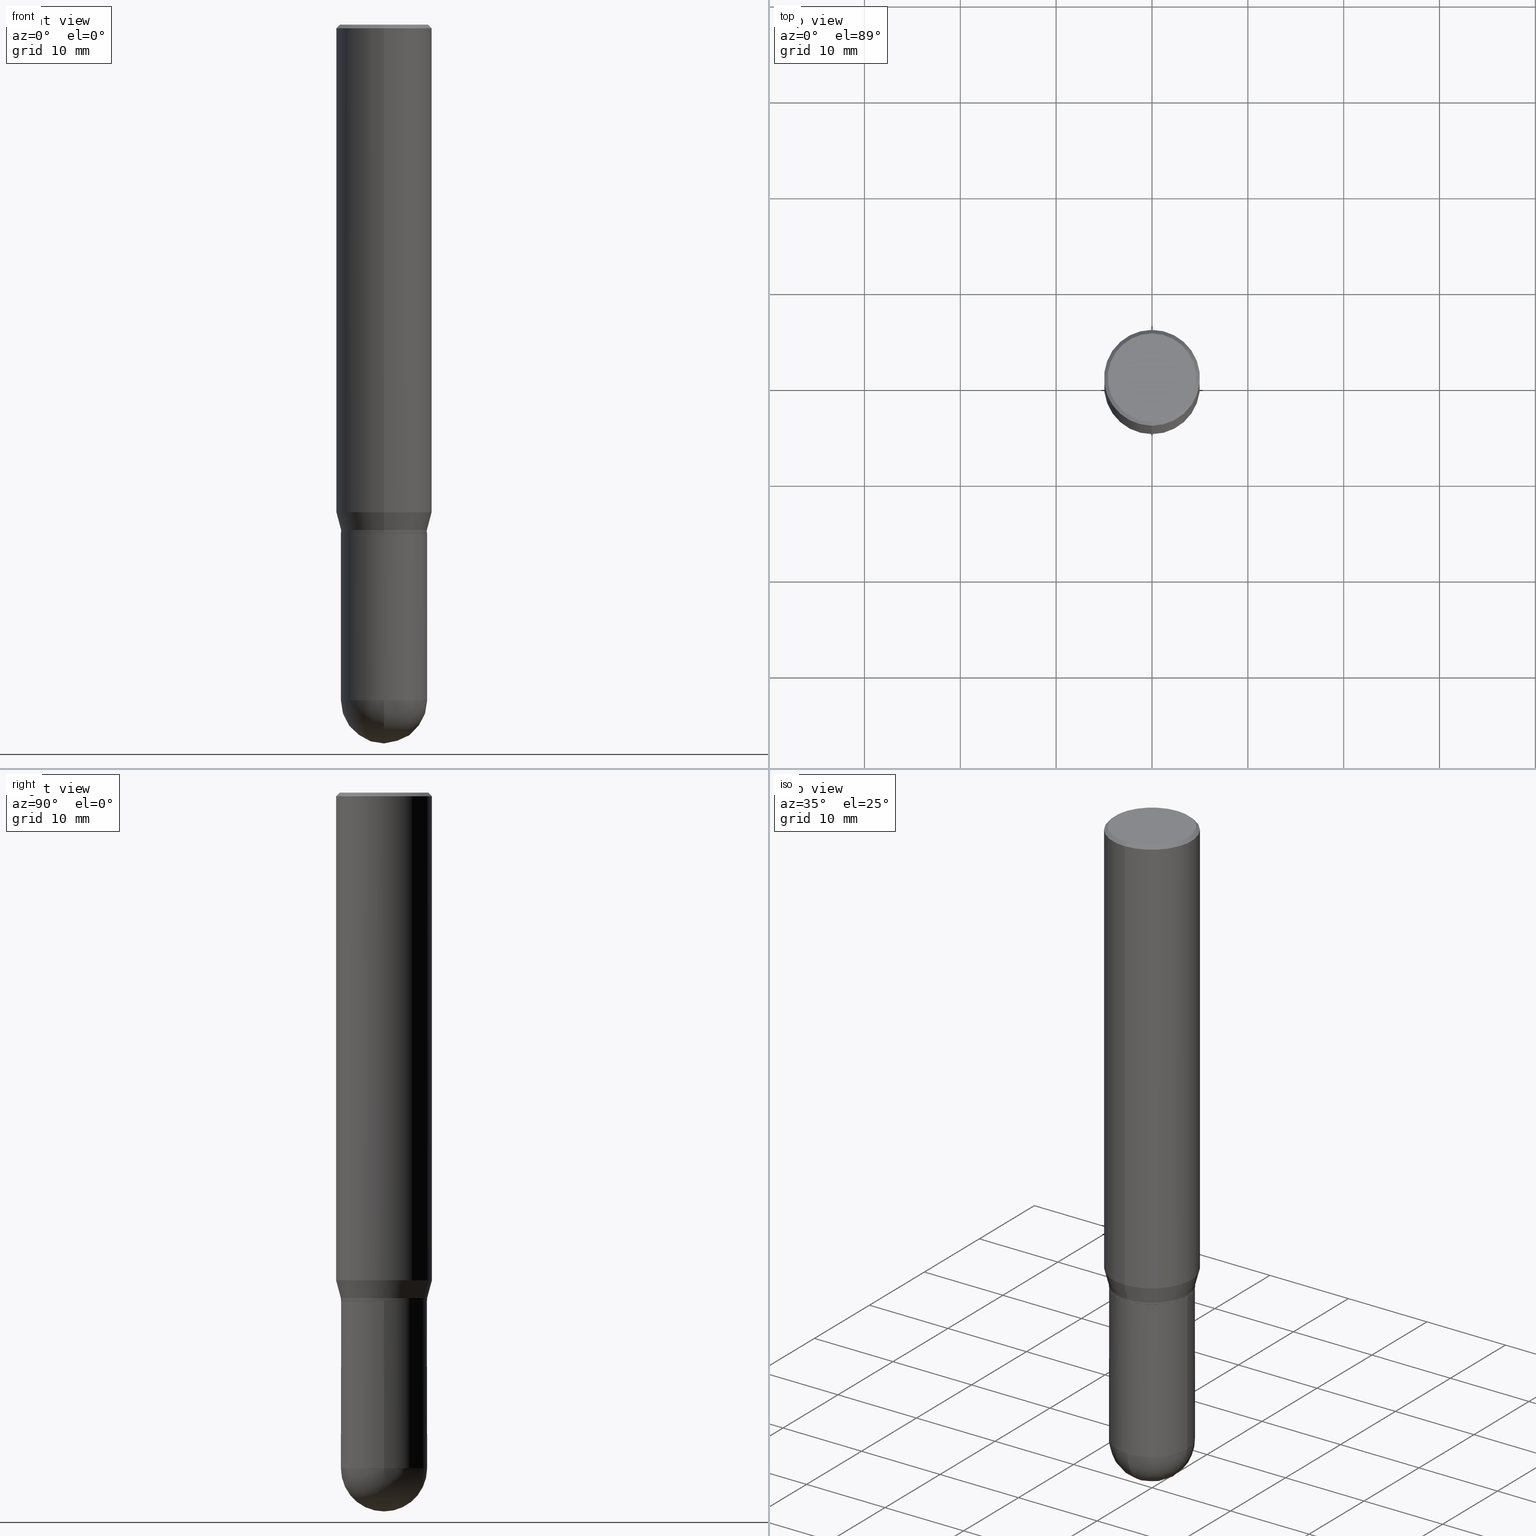
[diagram: canonical four-view strip — front | top / right | iso, engineering-drawing reading convention]
A machine part, canonical four-view strip (front | top / right | iso — engineering-drawing reading convention). The complete STEP part file that produces these views, byte-faithful:
ISO-10303-21;
HEADER;
FILE_DESCRIPTION (( 'STEP AP203' ),
    '1' );
FILE_NAME ('48726.STEP',
    '2024-03-08T13:18:42',
    ( '' ),
    ( '' ),
    'SwSTEP 2.0',
    'SolidWorks 2023',
    '' );
FILE_SCHEMA (( 'CONFIG_CONTROL_DESIGN' ));
ENDSEC;

DATA;
#1 = CARTESIAN_POINT ( 'NONE',  ( 1.255173742720268265E-15, 0.1766499999999928128, -2.086700000000000443 ) ) ;
#2 = CARTESIAN_POINT ( 'NONE',  ( -1.233540357013228308E-15, -0.1766500000000073567, -2.086699999999999555 ) ) ;
#3 = EDGE_CURVE ( 'NONE', #12, #211, #135, .T. ) ;
#4 = LINE ( 'NONE', #173, #301 ) ;
#5 = VECTOR ( 'NONE', #430, 39.37007874015748143 ) ;
#6 = APPROVAL_PERSON_ORGANIZATION ( #435, #405, #112 ) ;
#7 = DIRECTION ( 'NONE',  ( 6.982962677686265922E-15, 1.000000000000000000, -3.490923322346021182E-15 ) ) ;
#8 = EDGE_CURVE ( 'NONE', #156, #413, #419, .T. ) ;
#9 = ORIENTED_EDGE ( 'NONE', *, *, #61, .T. ) ;
#10 = CC_DESIGN_DATE_AND_TIME_ASSIGNMENT ( #73, #364, ( #482 ) ) ;
#11 = CARTESIAN_POINT ( 'NONE',  ( 1.328714915871437240E-15, 0.1771499999999927855, -2.076700000000000657 ) ) ;
#12 = VERTEX_POINT ( 'NONE', #312 ) ;
#13 = DIRECTION ( 'NONE',  ( -2.445468806185136597E-29, 3.491481338843145583E-15, 1.000000000000000000 ) ) ;
#14 = VECTOR ( 'NONE', #498, 39.37007874015748143 ) ;
#15 = CONICAL_SURFACE ( 'NONE', #512, 0.1766500000000000847, 0.7853981633974824739 ) ;
#16 = ORIENTED_EDGE ( 'NONE', *, *, #459, .F. ) ;
#17 = AXIS2_PLACEMENT_3D ( 'NONE', #103, #155, #465 ) ;
#18 = CARTESIAN_POINT ( 'NONE',  ( 6.813022828238686978E-29, -9.654960234947156736E-15, -2.775649999999999729 ) ) ;
#19 = DIMENSIONAL_EXPONENTS ( 1.000000000000000000, 0.000000000000000000, 0.000000000000000000, 0.000000000000000000, 0.000000000000000000, 0.000000000000000000, 0.000000000000000000 ) ;
#20 = FACE_OUTER_BOUND ( 'NONE', #143, .T. ) ;
#21 = EDGE_CURVE ( 'NONE', #219, #297, #119, .T. ) ;
#22 = EDGE_LOOP ( 'NONE', ( #265, #29, #256, #314 ) ) ;
#23 = CARTESIAN_POINT ( 'NONE',  ( -1.237031838352071512E-15, -0.1771500000000073571, -2.086199999999999388 ) ) ;
#24 = DIRECTION ( 'NONE',  ( 1.000000000000000000, -6.982962677686270655E-15, 0.000000000000000000 ) ) ;
#25 = CC_DESIGN_PERSON_AND_ORGANIZATION_ASSIGNMENT ( #77, #479, ( #346 ) ) ;
#26 = EDGE_LOOP ( 'NONE', ( #310, #59, #309, #295 ) ) ;
#27 = VERTEX_POINT ( 'NONE', #207 ) ;
#28 = CARTESIAN_POINT ( 'NONE',  ( 5.079314278465484950E-29, -7.249600463515981474E-15, -2.076700000000000212 ) ) ;
#29 = ORIENTED_EDGE ( 'NONE', *, *, #8, .T. ) ;
#30 = PERSON_AND_ORGANIZATION_ROLE ( 'design_supplier' ) ;
#31 = APPLICATION_CONTEXT ( 'configuration controlled 3d designs of mechanical parts and assemblies' ) ;
#32 = PERSON_AND_ORGANIZATION_ROLE ( 'creator' ) ;
#33 = ORIENTED_EDGE ( 'NONE', *, *, #154, .T. ) ;
#34 = CARTESIAN_POINT ( 'NONE',  ( 5.079314278465484950E-29, -7.249600463515981474E-15, -2.076700000000000212 ) ) ;
#35 = CARTESIAN_POINT ( 'NONE',  ( 0.000000000000000000, 0.000000000000000000, 0.000000000000000000 ) ) ;
#36 = DIRECTION ( 'NONE',  ( -2.445858467022432184E-29, 3.490923322346020788E-15, 1.000000000000000000 ) ) ;
#37 = SECURITY_CLASSIFICATION_LEVEL ( 'unclassified' ) ;
#38 = DIRECTION ( 'NONE',  ( -6.982962677686265922E-15, -1.000000000000000000, 4.163344669033675634E-15 ) ) ;
#39 = DATE_TIME_ROLE ( 'creation_date' ) ;
#40 = CIRCLE ( 'NONE', #283, 0.1968500000000000250 ) ;
#41 = FACE_OUTER_BOUND ( 'NONE', #97, .T. ) ;
#42 = ORGANIZATION ( 'UNSPECIFIED', 'UNSPECIFIED', '' ) ;
#43 = CYLINDRICAL_SURFACE ( 'NONE', #193, 0.1968499999999999694 ) ;
#44 = ADVANCED_FACE ( 'NONE', ( #436 ), #478, .F. ) ;
#45 = FACE_OUTER_BOUND ( 'NONE', #104, .T. ) ;
#46 = FACE_OUTER_BOUND ( 'NONE', #113, .T. ) ;
#47 = AXIS2_PLACEMENT_3D ( 'NONE', #508, #397, #82 ) ;
#48 = APPROVAL_PERSON_ORGANIZATION ( #471, #352, #510 ) ;
#49 = CYLINDRICAL_SURFACE ( 'NONE', #187, 0.1771500000000000019 ) ;
#50 = EDGE_CURVE ( 'NONE', #211, #219, #505, .T. ) ;
#51 = EDGE_LOOP ( 'NONE', ( #144, #271, #483, #99 ) ) ;
#52 = LINE ( 'NONE', #171, #431 ) ;
#53 = ORIENTED_EDGE ( 'NONE', *, *, #331, .T. ) ;
#54 = CARTESIAN_POINT ( 'NONE',  ( 5.102959757866523939E-29, -7.285674109763990928E-15, -2.086699999999999999 ) ) ;
#55 = AXIS2_PLACEMENT_3D ( 'NONE', #252, #136, #333 ) ;
#56 = ORIENTED_EDGE ( 'NONE', *, *, #124, .T. ) ;
#57 = DIRECTION ( 'NONE',  ( -6.982962677686265922E-15, -1.000000000000000000, 3.084220145260246224E-15 ) ) ;
#58 = CARTESIAN_POINT ( 'NONE',  ( 5.103772863135708834E-29, -7.284509696739441224E-15, -2.086699999999999999 ) ) ;
#59 = ORIENTED_EDGE ( 'NONE', *, *, #21, .T. ) ;
#60 = DIRECTION ( 'NONE',  ( 1.000000000000000000, -6.982962677686269077E-15, 0.000000000000000000 ) ) ;
#61 = EDGE_CURVE ( 'NONE', #150, #139, #203, .T. ) ;
#62 = FACE_OUTER_BOUND ( 'NONE', #270, .T. ) ;
#63 = EDGE_LOOP ( 'NONE', ( #191, #458 ) ) ;
#64 = PERSON ( 'UNSPECIFIED', 'UNSPECIFIED', 'UNSPECIFIED', ('UNSPECIFIED'), ('UNSPECIFIED'), ('UNSPECIFIED') ) ;
#65 = AXIS2_PLACEMENT_3D ( 'NONE', #145, #500, #182 ) ;
#66 = LOCAL_TIME ( 8, 18, 42.00000000000000000, #321 ) ;
#67 = ORIENTED_EDGE ( 'NONE', *, *, #258, .T. ) ;
#68 = ORIENTED_EDGE ( 'NONE', *, *, #382, .F. ) ;
#69 = PRODUCT_DEFINITION_SHAPE ( 'NONE', 'NONE',  #189 ) ;
#70 = APPROVAL_STATUS ( 'not_yet_approved' ) ;
#71 = EDGE_LOOP ( 'NONE', ( #68, #157, #420, #231 ) ) ;
#72 = EDGE_CURVE ( 'NONE', #297, #156, #390, .T. ) ;
#73 = DATE_AND_TIME ( #81, #118 ) ;
#74 = DIRECTION ( 'NONE',  ( -2.445858467022432184E-29, 3.490923322346020788E-15, 1.000000000000000000 ) ) ;
#75 = EDGE_CURVE ( 'NONE', #275, #156, #327, .T. ) ;
#76 = VECTOR ( 'NONE', #448, 39.37007874015748143 ) ;
#77 = PERSON_AND_ORGANIZATION ( #64, #42 ) ;
#78 = CARTESIAN_POINT ( 'NONE',  ( 3.668787700533860766E-31, -5.236384983519334795E-17, -0.01500000000000086854 ) ) ;
#79 = APPLICATION_PROTOCOL_DEFINITION ( 'international standard', 'config_control_design', 1994, #196 ) ;
#80 = DIRECTION ( 'NONE',  ( 1.839019923739597554E-15, 0.2588190451025245697, 0.9659258262890670910 ) ) ;
#81 = CALENDAR_DATE ( 2024, 8, 3 ) ;
#82 = DIRECTION ( 'NONE',  ( 1.000000000000000000, -6.982962677686270655E-15, 0.000000000000000000 ) ) ;
#83 = VECTOR ( 'NONE', #85, 39.37007874015748143 ) ;
#84 = CONICAL_SURFACE ( 'NONE', #158, 0.1771500000000000019, 0.2617993877991499074 ) ;
#85 = DIRECTION ( 'NONE',  ( -2.445858467022432184E-29, 3.490923322346021182E-15, 1.000000000000000000 ) ) ;
#86 = CIRCLE ( 'NONE', #490, 0.1766500000000000847 ) ;
#87 = CARTESIAN_POINT ( 'NONE',  ( 0.1771500000000000574, -1.237031838352122591E-15, 8.638147158322501361E-30 ) ) ;
#88 = VERTEX_POINT ( 'NONE', #202 ) ;
#89 = CARTESIAN_POINT ( 'NONE',  ( -0.1771500000000000574, -7.229675687562965256E-15, -2.775649999999999729 ) ) ;
#90 = PLANE ( 'NONE',  #147 ) ;
#91 = CIRCLE ( 'NONE', #254, 0.1818500000000000116 ) ;
#92 = AXIS2_PLACEMENT_3D ( 'NONE', #263, #276, #358 ) ;
#93 = CARTESIAN_POINT ( 'NONE',  ( 0.000000000000000000, 0.000000000000000000, 0.000000000000000000 ) ) ;
#94 = ORIENTED_EDGE ( 'NONE', *, *, #72, .F. ) ;
#95 = FACE_OUTER_BOUND ( 'NONE', #277, .T. ) ;
#96 = ADVANCED_FACE ( 'NONE', ( #242 ), #160, .T. ) ;
#97 = EDGE_LOOP ( 'NONE', ( #133, #438, #259, #176 ) ) ;
#98 = FACE_OUTER_BOUND ( 'NONE', #445, .T. ) ;
#99 = ORIENTED_EDGE ( 'NONE', *, *, #241, .F. ) ;
#100 = CONICAL_SURFACE ( 'NONE', #174, 0.1771500000000000019, 0.2617993877991499074 ) ;
#101 = DIRECTION ( 'NONE',  ( -2.445858467022432184E-29, 3.490923322346020788E-15, 1.000000000000000000 ) ) ;
#102 = ORIENTED_EDGE ( 'NONE', *, *, #217, .T. ) ;
#103 = CARTESIAN_POINT ( 'NONE',  ( 6.813022828238686978E-29, -9.654960234947156736E-15, -2.775649999999999729 ) ) ;
#104 = EDGE_LOOP ( 'NONE', ( #186, #16 ) ) ;
#105 = CC_DESIGN_PERSON_AND_ORGANIZATION_ASSIGNMENT ( #329, #121, ( #482 ) ) ;
#106 = LINE ( 'NONE', #225, #406 ) ;
#107 = CIRCLE ( 'NONE', #368, 0.1771500000000000852 ) ;
#108 = PRODUCT_DEFINITION_FORMATION_WITH_SPECIFIED_SOURCE ( 'ANY', '', #346, .NOT_KNOWN. ) ;
#109 = DIRECTION ( 'NONE',  ( 1.000000000000000000, -6.982962677686266711E-15, 4.876176775795934672E-29 ) ) ;
#110 = ADVANCED_FACE ( 'NONE', ( #480 ), #84, .T. ) ;
#111 = EDGE_LOOP ( 'NONE', ( #129, #402, #33, #411 ) ) ;
#112 = APPROVAL_ROLE ( '' ) ;
#113 = EDGE_LOOP ( 'NONE', ( #425, #226, #495, #181 ) ) ;
#114 = CARTESIAN_POINT ( 'NONE',  ( 0.000000000000000000, 0.000000000000000000, 0.000000000000000000 ) ) ;
#115 = PERSON_AND_ORGANIZATION ( #64, #42 ) ;
#116 = DIRECTION ( 'NONE',  ( -2.445858467022432184E-29, 3.490923322346020788E-15, 1.000000000000000000 ) ) ;
#117 = CIRCLE ( 'NONE', #247, 0.1771500000000000574 ) ;
#118 = LOCAL_TIME ( 8, 18, 42.00000000000000000, #164 ) ;
#119 = LINE ( 'NONE', #395, #83 ) ;
#120 = EDGE_CURVE ( 'NONE', #262, #453, #366, .T. ) ;
#121 = PERSON_AND_ORGANIZATION_ROLE ( 'classification_officer' ) ;
#122 = DIRECTION ( 'NONE',  ( -6.982962677686265922E-15, -1.000000000000000000, 3.490923322346020394E-15 ) ) ;
#123 = PERSON_AND_ORGANIZATION ( #64, #42 ) ;
#124 = EDGE_CURVE ( 'NONE', #262, #409, #91, .T. ) ;
#125 = CARTESIAN_POINT ( 'NONE',  ( 2.126280627194587718E-44, -3.034796465701640769E-30, -8.693391935237790375E-16 ) ) ;
#126 = AXIS2_PLACEMENT_3D ( 'NONE', #332, #511, #365 ) ;
#127 = DIRECTION ( 'NONE',  ( -4.937700262164715281E-15, -0.7071067811865691111, 0.7071067811865257013 ) ) ;
#128 = EDGE_CURVE ( 'NONE', #221, #27, #212, .T. ) ;
#129 = ORIENTED_EDGE ( 'NONE', *, *, #8, .F. ) ;
#130 = CARTESIAN_POINT ( 'NONE',  ( -1.237031838352071315E-15, -0.1771500000000072461, -2.076699999999999768 ) ) ;
#131 = EDGE_LOOP ( 'NONE', ( #229, #56 ) ) ;
#132 = CARTESIAN_POINT ( 'NONE',  ( -0.1771500000000000574, 1.258726456399017887E-15, -8.713893512386568128E-30 ) ) ;
#133 = ORIENTED_EDGE ( 'NONE', *, *, #120, .F. ) ;
#134 = ADVANCED_FACE ( 'NONE', ( #41 ), #264, .T. ) ;
#135 = CIRCLE ( 'NONE', #468, 0.1766500000000000847 ) ;
#136 = DIRECTION ( 'NONE',  ( -2.445858467022432184E-29, 3.490923322346020788E-15, 1.000000000000000000 ) ) ;
#137 = VECTOR ( 'NONE', #403, 39.37007874015748143 ) ;
#138 = EDGE_CURVE ( 'NONE', #409, #262, #230, .T. ) ;
#139 = VERTEX_POINT ( 'NONE', #206 ) ;
#140 = CARTESIAN_POINT ( 'NONE',  ( 0.000000000000000000, 0.000000000000000000, 0.000000000000000000 ) ) ;
#141 = ORIENTED_EDGE ( 'NONE', *, *, #492, .T. ) ;
#142 = CARTESIAN_POINT ( 'NONE',  ( 1.398703375343806303E-15, 0.1968499999999999139, -0.01500000000000155549 ) ) ;
#143 = EDGE_LOOP ( 'NONE', ( #94, #141, #306, #456 ) ) ;
#144 = ORIENTED_EDGE ( 'NONE', *, *, #455, .F. ) ;
#145 = CARTESIAN_POINT ( 'NONE',  ( 6.813022828238686978E-29, -9.654960234947156736E-15, -2.775649999999999729 ) ) ;
#146 = EDGE_CURVE ( 'NONE', #453, #413, #223, .T. ) ;
#147 = AXIS2_PLACEMENT_3D ( 'NONE', #491, #213, #7 ) ;
#148 = CC_DESIGN_APPROVAL ( #405, ( #482 ) ) ;
#149 = DIRECTION ( 'NONE',  ( -2.445468806185136597E-29, 3.491481338843145583E-15, 1.000000000000000000 ) ) ;
#150 = VERTEX_POINT ( 'NONE', #290 ) ;
#151 = ORIENTED_EDGE ( 'NONE', *, *, #75, .F. ) ;
#152 = ADVANCED_FACE ( 'NONE', ( #282 ), #43, .T. ) ;
#153 = DIRECTION ( 'NONE',  ( -1.000000000000000000, 6.982962677686265133E-15, -4.883557194083112340E-29 ) ) ;
#154 = EDGE_CURVE ( 'NONE', #275, #453, #363, .T. ) ;
#155 = DIRECTION ( 'NONE',  ( -1.000000000000000000, 6.982962677686265133E-15, -4.883557194083112340E-29 ) ) ;
#156 = VERTEX_POINT ( 'NONE', #324 ) ;
#157 = ORIENTED_EDGE ( 'NONE', *, *, #455, .T. ) ;
#158 = AXIS2_PLACEMENT_3D ( 'NONE', #34, #509, #243 ) ;
#159 = DATE_AND_TIME ( #205, #66 ) ;
#160 = CYLINDRICAL_SURFACE ( 'NONE', #442, 0.1968499999999999694 ) ;
#161 = ADVANCED_BREP_SHAPE_REPRESENTATION ( '48726', ( #233, #227, #335 ), #266 ) ;
#162 = DIRECTION ( 'NONE',  ( 0.000000000000000000, 0.000000000000000000, 1.000000000000000000 ) ) ;
#163 = CARTESIAN_POINT ( 'NONE',  ( -1.374596203102541214E-15, -0.1968499999999999694, 6.871882560038140128E-16 ) ) ;
#164 = COORDINATED_UNIVERSAL_TIME_OFFSET ( 5, 0, .BEHIND. ) ;
#165 = DIRECTION ( 'NONE',  ( -2.445858467022432184E-29, 3.490923322346020788E-15, 1.000000000000000000 ) ) ;
#166 = EDGE_CURVE ( 'NONE', #413, #453, #40, .T. ) ;
#167 = DATE_AND_TIME ( #503, #274 ) ;
#168 = DIRECTION ( 'NONE',  ( -2.445858467022432184E-29, 3.490923322346020788E-15, 1.000000000000000000 ) ) ;
#169 = APPROVAL_STATUS ( 'not_yet_approved' ) ;
#170 = CARTESIAN_POINT ( 'NONE',  ( 1.237031838352173473E-15, 0.1771499999999928132, -2.086700000000000443 ) ) ;
#171 = CARTESIAN_POINT ( 'NONE',  ( -1.237031838352121999E-15, -0.1771500000000000019, 6.184170665535975907E-16 ) ) ;
#172 = AXIS2_PLACEMENT_3D ( 'NONE', #285, #36, #38 ) ;
#173 = CARTESIAN_POINT ( 'NONE',  ( -1.237031838352071315E-15, -0.1771500000000072461, -2.076699999999999768 ) ) ;
#174 = AXIS2_PLACEMENT_3D ( 'NONE', #28, #101, #183 ) ;
#175 = CARTESIAN_POINT ( 'NONE',  ( 0.000000000000000000, 0.000000000000000000, 0.000000000000000000 ) ) ;
#176 = ORIENTED_EDGE ( 'NONE', *, *, #166, .T. ) ;
#177 = CARTESIAN_POINT ( 'NONE',  ( 5.103772863135708834E-29, -7.284509696739441224E-15, -2.086699999999999999 ) ) ;
#178 = CARTESIAN_POINT ( 'NONE',  ( -1.299035295878039226E-15, -0.1818500000000000116, -2.345147873551550940E-16 ) ) ;
#179 = AXIS2_PLACEMENT_3D ( 'NONE', #440, #439, #238 ) ;
#180 = AXIS2_PLACEMENT_3D ( 'NONE', #317, #493, #24 ) ;
#181 = ORIENTED_EDGE ( 'NONE', *, *, #349, .F. ) ;
#182 = DIRECTION ( 'NONE',  ( -7.105427357600999492E-15, -1.000000000000000000, 0.000000000000000000 ) ) ;
#183 = DIRECTION ( 'NONE',  ( -6.982962677686265922E-15, -1.000000000000000000, 3.084220145260246224E-15 ) ) ;
#184 = VERTEX_POINT ( 'NONE', #302 ) ;
#185 = CARTESIAN_POINT ( 'NONE',  ( 0.1771500000000000852, -8.522705948116114900E-15, -2.086699999999999999 ) ) ;
#186 = ORIENTED_EDGE ( 'NONE', *, *, #3, .F. ) ;
#187 = AXIS2_PLACEMENT_3D ( 'NONE', #93, #481, #303 ) ;
#188 = FACE_OUTER_BOUND ( 'NONE', #71, .T. ) ;
#189 = PRODUCT_DEFINITION ( 'UNKNOWN', '', #108, #446 ) ;
#190 = FACE_OUTER_BOUND ( 'NONE', #51, .T. ) ;
#191 = ORIENTED_EDGE ( 'NONE', *, *, #396, .T. ) ;
#192 =( NAMED_UNIT ( * ) PLANE_ANGLE_UNIT ( ) SI_UNIT ( $, .RADIAN. ) );
#193 = AXIS2_PLACEMENT_3D ( 'NONE', #322, #280, #197 ) ;
#194 = CIRCLE ( 'NONE', #432, 0.1771500000000000574 ) ;
#195 = DATE_AND_TIME ( #428, #443 ) ;
#196 = APPLICATION_CONTEXT ( 'configuration controlled 3d designs of mechanical parts and assemblies' ) ;
#197 = DIRECTION ( 'NONE',  ( -6.982962677686265922E-15, -1.000000000000000000, 3.490923322346020394E-15 ) ) ;
#198 = ADVANCED_FACE ( 'NONE', ( #444 ), #257, .T. ) ;
#199 = DIRECTION ( 'NONE',  ( -2.445858467022432184E-29, 3.490923322346020788E-15, 1.000000000000000000 ) ) ;
#200 = ADVANCED_FACE ( 'NONE', ( #95 ), #308, .T. ) ;
#201 = APPROVAL_DATE_TIME ( #159, #352 ) ;
#202 = CARTESIAN_POINT ( 'NONE',  ( -0.1771500000000000852, -7.229675687562965256E-15, -2.086699999999999999 ) ) ;
#203 = CIRCLE ( 'NONE', #179, 0.1771500000000000574 ) ;
#204 = CONICAL_SURFACE ( 'NONE', #224, 0.1968500000000000250, 0.7853981633974485010 ) ;
#205 = CALENDAR_DATE ( 2024, 8, 3 ) ;
#206 = CARTESIAN_POINT ( 'NONE',  ( 1.237031838352190236E-15, 0.1771499999999903430, -2.775650000000000173 ) ) ;
#207 = CARTESIAN_POINT ( 'NONE',  ( -1.258726456398949454E-15, -0.1771500000000097441, -2.775649999999999284 ) ) ;
#208 = DIRECTION ( 'NONE',  ( -2.445858467022431624E-29, 3.490923322346021182E-15, 1.000000000000000000 ) ) ;
#209 = VERTEX_POINT ( 'NONE', #130 ) ;
#210 = CC_DESIGN_PERSON_AND_ORGANIZATION_ASSIGNMENT ( #369, #30, ( #108 ) ) ;
#211 = VERTEX_POINT ( 'NONE', #378 ) ;
#212 = CIRCLE ( 'NONE', #47, 0.1771500000000000574 ) ;
#213 = DIRECTION ( 'NONE',  ( 2.445858467022431624E-29, -3.490923322346021182E-15, -1.000000000000000000 ) ) ;
#214 = CIRCLE ( 'NONE', #92, 0.1771500000000000019 ) ;
#215 = ORIENTED_EDGE ( 'NONE', *, *, #258, .F. ) ;
#216 = ADVANCED_FACE ( 'NONE', ( #46 ), #15, .T. ) ;
#217 = EDGE_CURVE ( 'NONE', #150, #388, #296, .T. ) ;
#218 = FACE_OUTER_BOUND ( 'NONE', #389, .T. ) ;
#219 = VERTEX_POINT ( 'NONE', #410 ) ;
#220 = DIRECTION ( 'NONE',  ( -2.445468806185136597E-29, 3.491481338843145583E-15, 1.000000000000000000 ) ) ;
#221 = VERTEX_POINT ( 'NONE', #89 ) ;
#222 = SPHERICAL_SURFACE ( 'NONE', #391, 0.1771500000000000574 ) ;
#223 = CIRCLE ( 'NONE', #502, 0.1968500000000000250 ) ;
#224 = AXIS2_PLACEMENT_3D ( 'NONE', #269, #423, #497 ) ;
#225 = CARTESIAN_POINT ( 'NONE',  ( 1.374596203102542003E-15, 0.1968499999999999417, -0.01500000000000155549 ) ) ;
#226 = ORIENTED_EDGE ( 'NONE', *, *, #50, .T. ) ;
#227 = MANIFOLD_SOLID_BREP ( 'Body-Move/Copy2[2]', #300 ) ;
#228 = DIRECTION ( 'NONE',  ( 6.982962677686264344E-15, 1.000000000000000000, 0.000000000000000000 ) ) ;
#229 = ORIENTED_EDGE ( 'NONE', *, *, #138, .T. ) ;
#230 = CIRCLE ( 'NONE', #461, 0.1818500000000000116 ) ;
#231 = ORIENTED_EDGE ( 'NONE', *, *, #467, .F. ) ;
#232 = CC_DESIGN_SECURITY_CLASSIFICATION ( #482, ( #108 ) ) ;
#233 = MANIFOLD_SOLID_BREP ( 'Body-Move/Copy2[1]', #291 ) ;
#234 =( LENGTH_UNIT ( ) NAMED_UNIT ( * ) SI_UNIT ( $, .METRE. ) );
#235 = EDGE_CURVE ( 'NONE', #156, #275, #293, .T. ) ;
#236 = APPROVAL_ROLE ( '' ) ;
#237 = APPROVAL_STATUS ( 'not_yet_approved' ) ;
#238 = DIRECTION ( 'NONE',  ( 1.000000000000000000, -6.982962677686270655E-15, 0.000000000000000000 ) ) ;
#239 = CIRCLE ( 'NONE', #284, 0.1771500000000000019 ) ;
#240 = PERSON_AND_ORGANIZATION ( #64, #42 ) ;
#241 = EDGE_CURVE ( 'NONE', #139, #221, #117, .T. ) ;
#242 = FACE_OUTER_BOUND ( 'NONE', #111, .T. ) ;
#243 = DIRECTION ( 'NONE',  ( -6.982962677686265922E-15, -1.000000000000000000, 3.084220145260246224E-15 ) ) ;
#244 = CC_DESIGN_PERSON_AND_ORGANIZATION_ASSIGNMENT ( #123, #32, ( #108 ) ) ;
#245 =( NAMED_UNIT ( * ) SI_UNIT ( $, .STERADIAN. ) SOLID_ANGLE_UNIT ( ) );
#246 = DIRECTION ( 'NONE',  ( -6.982962677686265133E-15, -1.000000000000000000, 3.490923322346020788E-15 ) ) ;
#247 = AXIS2_PLACEMENT_3D ( 'NONE', #340, #13, #338 ) ;
#248 = AXIS2_PLACEMENT_3D ( 'NONE', #348, #347, #109 ) ;
#249 = CARTESIAN_POINT ( 'NONE',  ( 1.258726456399067980E-15, 0.1771499999999927855, -2.076700000000000657 ) ) ;
#250 = CARTESIAN_POINT ( 'NONE',  ( 5.103772863135708834E-29, -7.284509696739441224E-15, -2.086699999999999999 ) ) ;
#251 = SHAPE_DEFINITION_REPRESENTATION ( #69, #161 ) ;
#252 = CARTESIAN_POINT ( 'NONE',  ( 4.899491337544596904E-29, -6.992942890390830746E-15, -2.003178599090893464 ) ) ;
#253 = ORIENTED_EDGE ( 'NONE', *, *, #452, .T. ) ;
#254 = AXIS2_PLACEMENT_3D ( 'NONE', #472, #199, #394 ) ;
#255 = DIRECTION ( 'NONE',  ( 1.000000000000000000, -6.982962677686269077E-15, 0.000000000000000000 ) ) ;
#256 = ORIENTED_EDGE ( 'NONE', *, *, #146, .F. ) ;
#257 = CYLINDRICAL_SURFACE ( 'NONE', #334, 0.1771500000000000019 ) ;
#258 = EDGE_CURVE ( 'NONE', #221, #88, #486, .T. ) ;
#259 = ORIENTED_EDGE ( 'NONE', *, *, #499, .T. ) ;
#260 = DIRECTION ( 'NONE',  ( -2.445468806185136597E-29, 3.491481338843145583E-15, 1.000000000000000000 ) ) ;
#261 = ADVANCED_FACE ( 'NONE', ( #374 ), #90, .F. ) ;
#262 = VERTEX_POINT ( 'NONE', #178 ) ;
#263 = CARTESIAN_POINT ( 'NONE',  ( 5.102549933902198425E-29, -7.282764235078269262E-15, -2.086199999999999832 ) ) ;
#264 = CONICAL_SURFACE ( 'NONE', #126, 0.1968500000000000250, 0.7853981633974485010 ) ;
#265 = ORIENTED_EDGE ( 'NONE', *, *, #75, .T. ) ;
#266 =( GEOMETRIC_REPRESENTATION_CONTEXT ( 3 ) GLOBAL_UNCERTAINTY_ASSIGNED_CONTEXT ( ( #292 ) ) GLOBAL_UNIT_ASSIGNED_CONTEXT ( ( #473, #192, #245 ) ) REPRESENTATION_CONTEXT ( 'NONE', 'WORKASPACE' ) );
#267 = ORIENTED_EDGE ( 'NONE', *, *, #396, .F. ) ;
#268 = DIRECTION ( 'NONE',  ( 4.937700262164548831E-15, 0.7071067811865452413, -0.7071067811865497932 ) ) ;
#269 = CARTESIAN_POINT ( 'NONE',  ( 3.668787700533860766E-31, -5.236384983519334795E-17, -0.01500000000000086854 ) ) ;
#270 = EDGE_LOOP ( 'NONE', ( #345, #489, #320, #278 ) ) ;
#271 = ORIENTED_EDGE ( 'NONE', *, *, #382, .T. ) ;
#272 = CARTESIAN_POINT ( 'NONE',  ( 1.322223983019894726E-15, 0.1818500000000000116, -1.504163599692402932E-15 ) ) ;
#273 = AXIS2_PLACEMENT_3D ( 'NONE', #54, #220, #255 ) ;
#274 = LOCAL_TIME ( 8, 18, 42.00000000000000000, #477 ) ;
#275 = VERTEX_POINT ( 'NONE', #451 ) ;
#276 = DIRECTION ( 'NONE',  ( -2.445858467022432184E-29, 3.490923322346020788E-15, 1.000000000000000000 ) ) ;
#277 = EDGE_LOOP ( 'NONE', ( #485, #427, #386, #426 ) ) ;
#278 = ORIENTED_EDGE ( 'NONE', *, *, #499, .F. ) ;
#279 = COORDINATED_UNIVERSAL_TIME_OFFSET ( 5, 0, .BEHIND. ) ;
#280 = DIRECTION ( 'NONE',  ( -2.445858467022432184E-29, 3.490923322346020788E-15, 1.000000000000000000 ) ) ;
#281 = LENGTH_MEASURE_WITH_UNIT ( LENGTH_MEASURE( 0.02539999999999999897 ), #234 );
#282 = FACE_OUTER_BOUND ( 'NONE', #22, .T. ) ;
#283 = AXIS2_PLACEMENT_3D ( 'NONE', #78, #165, #392 ) ;
#284 = AXIS2_PLACEMENT_3D ( 'NONE', #316, #357, #466 ) ;
#285 = CARTESIAN_POINT ( 'NONE',  ( 4.899491337544596904E-29, -6.992942890390830746E-15, -2.003178599090893464 ) ) ;
#286 = DIRECTION ( 'NONE',  ( 1.000000000000000000, 0.000000000000000000, 0.000000000000000000 ) ) ;
#287 = DIRECTION ( 'NONE',  ( -4.851104656540965064E-15, -0.7071067811865501263, -0.7071067811865449082 ) ) ;
#288 = ADVANCED_FACE ( 'NONE', ( #45 ), #488, .F. ) ;
#289 = MECHANICAL_CONTEXT ( 'NONE', #31, 'mechanical' ) ;
#290 = CARTESIAN_POINT ( 'NONE',  ( 0.1771500000000000574, -9.725433982314104551E-15, -2.775649999999999729 ) ) ;
#291 = CLOSED_SHELL ( 'NONE', ( #337, #408, #44, #487, #398 ) ) ;
#292 = UNCERTAINTY_MEASURE_WITH_UNIT (LENGTH_MEASURE( 1.000000000000000082E-05 ), #473, 'distance_accuracy_value', 'NONE');
#293 = CIRCLE ( 'NONE', #55, 0.1968499999999999694 ) ;
#294 = DIRECTION ( 'NONE',  ( -6.982962677686265133E-15, -1.000000000000000000, 3.092949893760839854E-15 ) ) ;
#295 = ORIENTED_EDGE ( 'NONE', *, *, #331, .F. ) ;
#296 = LINE ( 'NONE', #87, #76 ) ;
#297 = VERTEX_POINT ( 'NONE', #11 ) ;
#298 = CARTESIAN_POINT ( 'NONE',  ( 5.103772863135708834E-29, -7.284509696739441224E-15, -2.086699999999999999 ) ) ;
#299 = AXIS2_PLACEMENT_3D ( 'NONE', #170, #326, #475 ) ;
#300 = CLOSED_SHELL ( 'NONE', ( #198, #216, #441, #152, #110, #399, #96, #134, #261, #288, #200, #315 ) ) ;
#301 = VECTOR ( 'NONE', #494, 39.37007874015748143 ) ;
#302 = CARTESIAN_POINT ( 'NONE',  ( 7.253812262660790316E-29, -1.026262884509977305E-14, -2.952799999999999869 ) ) ;
#303 = DIRECTION ( 'NONE',  ( -6.982962677686265922E-15, -1.000000000000000000, 3.490923322346020788E-15 ) ) ;
#304 = ORIENTED_EDGE ( 'NONE', *, *, #128, .T. ) ;
#305 = CARTESIAN_POINT ( 'NONE',  ( 5.079314278465484950E-29, -7.249600463515981474E-15, -2.076700000000000212 ) ) ;
#306 = ORIENTED_EDGE ( 'NONE', *, *, #371, .T. ) ;
#307 = CARTESIAN_POINT ( 'NONE',  ( 5.103772863135708834E-29, -7.284509696739441224E-15, -2.086699999999999999 ) ) ;
#308 = CONICAL_SURFACE ( 'NONE', #353, 0.1766500000000000847, 0.7853981633974824739 ) ;
#309 = ORIENTED_EDGE ( 'NONE', *, *, #452, .F. ) ;
#310 = ORIENTED_EDGE ( 'NONE', *, *, #507, .T. ) ;
#311 = SPHERICAL_SURFACE ( 'NONE', #17, 0.1771500000000000574 ) ;
#312 = CARTESIAN_POINT ( 'NONE',  ( -1.233540357013228308E-15, -0.1766500000000073567, -2.086699999999999555 ) ) ;
#313 = EDGE_CURVE ( 'NONE', #88, #388, #362, .T. ) ;
#314 = ORIENTED_EDGE ( 'NONE', *, *, #154, .F. ) ;
#315 = ADVANCED_FACE ( 'NONE', ( #407 ), #49, .T. ) ;
#316 = CARTESIAN_POINT ( 'NONE',  ( 5.102549933902198425E-29, -7.282764235078269262E-15, -2.086199999999999832 ) ) ;
#317 = CARTESIAN_POINT ( 'NONE',  ( 6.787765491887772680E-29, -9.691130178159974964E-15, -2.775649999999999729 ) ) ;
#318 = AXIS2_PLACEMENT_3D ( 'NONE', #298, #208, #449 ) ;
#319 = AXIS2_PLACEMENT_3D ( 'NONE', #470, #351, #501 ) ;
#320 = ORIENTED_EDGE ( 'NONE', *, *, #146, .T. ) ;
#321 = COORDINATED_UNIVERSAL_TIME_OFFSET ( 5, 0, .BEHIND. ) ;
#322 = CARTESIAN_POINT ( 'NONE',  ( 0.000000000000000000, 0.000000000000000000, 0.000000000000000000 ) ) ;
#323 = APPROVAL_DATE_TIME ( #167, #359 ) ;
#324 = CARTESIAN_POINT ( 'NONE',  ( 1.398703375343805514E-15, 0.1968499999999929750, -2.003178599090894352 ) ) ;
#325 = CALENDAR_DATE ( 2024, 8, 3 ) ;
#326 = DIRECTION ( 'NONE',  ( 2.438088387897960049E-29, -3.491481338843145188E-15, -1.000000000000000000 ) ) ;
#327 = CIRCLE ( 'NONE', #172, 0.1968499999999999694 ) ;
#328 = CIRCLE ( 'NONE', #319, 0.1771500000000000019 ) ;
#329 = PERSON_AND_ORGANIZATION ( #64, #42 ) ;
#330 = DIRECTION ( 'NONE',  ( 5.024295867788231995E-15, 0.7071067811865739960, 0.7071067811865208164 ) ) ;
#331 = EDGE_CURVE ( 'NONE', #375, #209, #52, .T. ) ;
#332 = CARTESIAN_POINT ( 'NONE',  ( 3.668787700533860766E-31, -5.236384983519334795E-17, -0.01500000000000086854 ) ) ;
#333 = DIRECTION ( 'NONE',  ( -6.982962677686265922E-15, -1.000000000000000000, 4.163344669033675634E-15 ) ) ;
#334 = AXIS2_PLACEMENT_3D ( 'NONE', #175, #336, #454 ) ;
#335 = AXIS2_PLACEMENT_3D ( 'NONE', #35, #162, #286 ) ;
#336 = DIRECTION ( 'NONE',  ( -2.445858467022432184E-29, 3.490923322346020788E-15, 1.000000000000000000 ) ) ;
#337 = ADVANCED_FACE ( 'NONE', ( #218 ), #376, .T. ) ;
#338 = DIRECTION ( 'NONE',  ( 1.000000000000000000, -6.982962677686270655E-15, 0.000000000000000000 ) ) ;
#339 = EDGE_LOOP ( 'NONE', ( #356, #422, #53, #377 ) ) ;
#340 = CARTESIAN_POINT ( 'NONE',  ( 6.787765491887772680E-29, -9.691130178159974964E-15, -2.775649999999999729 ) ) ;
#341 = ORIENTED_EDGE ( 'NONE', *, *, #72, .T. ) ;
#342 = AXIS2_PLACEMENT_3D ( 'NONE', #140, #260, #412 ) ;
#343 = LOCAL_TIME ( 8, 18, 42.00000000000000000, #506 ) ;
#344 = DIRECTION ( 'NONE',  ( -6.982962677686265133E-15, -1.000000000000000000, 3.092949893760839854E-15 ) ) ;
#345 = ORIENTED_EDGE ( 'NONE', *, *, #124, .F. ) ;
#346 = PRODUCT ( '48726', '48726', '', ( #289 ) ) ;
#347 = DIRECTION ( 'NONE',  ( -2.445468806185136597E-29, 3.491481338843145583E-15, 1.000000000000000000 ) ) ;
#348 = CARTESIAN_POINT ( 'NONE',  ( 0.000000000000000000, 0.000000000000000000, 0.000000000000000000 ) ) ;
#349 = EDGE_CURVE ( 'NONE', #12, #375, #372, .T. ) ;
#350 = EDGE_LOOP ( 'NONE', ( #253, #341, #151, #361 ) ) ;
#351 = DIRECTION ( 'NONE',  ( -2.445858467022432184E-29, 3.490923322346020788E-15, 1.000000000000000000 ) ) ;
#352 = APPROVAL ( #169, 'UNSPECIFIED' ) ;
#353 = AXIS2_PLACEMENT_3D ( 'NONE', #250, #400, #344 ) ;
#354 = CARTESIAN_POINT ( 'NONE',  ( 1.398703375343756802E-15, 0.1968499999999999694, -6.871882560038140128E-16 ) ) ;
#355 = CC_DESIGN_APPROVAL ( #352, ( #108 ) ) ;
#356 = ORIENTED_EDGE ( 'NONE', *, *, #21, .F. ) ;
#357 = DIRECTION ( 'NONE',  ( -2.445858467022432184E-29, 3.490923322346020788E-15, 1.000000000000000000 ) ) ;
#358 = DIRECTION ( 'NONE',  ( -6.982962677686265922E-15, -1.000000000000000000, 3.084220145260246224E-15 ) ) ;
#359 = APPROVAL ( #237, 'UNSPECIFIED' ) ;
#360 = APPLICATION_PROTOCOL_DEFINITION ( 'international standard', 'config_control_design', 1994, #31 ) ;
#361 = ORIENTED_EDGE ( 'NONE', *, *, #371, .F. ) ;
#362 = CIRCLE ( 'NONE', #273, 0.1771500000000000852 ) ;
#363 = LINE ( 'NONE', #163, #5 ) ;
#364 = DATE_TIME_ROLE ( 'classification_date' ) ;
#365 = DIRECTION ( 'NONE',  ( 6.982962677686265133E-15, 1.000000000000000000, -3.491137977679279424E-15 ) ) ;
#366 = LINE ( 'NONE', #429, #469 ) ;
#367 = VECTOR ( 'NONE', #330, 39.37007874015748854 ) ;
#368 = AXIS2_PLACEMENT_3D ( 'NONE', #418, #149, #60 ) ;
#369 = PERSON_AND_ORGANIZATION ( #64, #42 ) ;
#370 = DIRECTION ( 'NONE',  ( -6.982962677686265133E-15, -1.000000000000000000, 3.491137977679279424E-15 ) ) ;
#371 = EDGE_CURVE ( 'NONE', #209, #275, #4, .T. ) ;
#372 = LINE ( 'NONE', #2, #476 ) ;
#373 = DIRECTION ( 'NONE',  ( -2.445858467022432184E-29, 3.490923322346021182E-15, 1.000000000000000000 ) ) ;
#374 = FACE_OUTER_BOUND ( 'NONE', #131, .T. ) ;
#375 = VERTEX_POINT ( 'NONE', #23 ) ;
#376 = CYLINDRICAL_SURFACE ( 'NONE', #342, 0.1771500000000000574 ) ;
#377 = ORIENTED_EDGE ( 'NONE', *, *, #492, .F. ) ;
#378 = CARTESIAN_POINT ( 'NONE',  ( 1.256950099559668320E-15, 0.1766499999999928128, -2.086700000000000443 ) ) ;
#379 = ORIENTED_EDGE ( 'NONE', *, *, #217, .F. ) ;
#380 = DIRECTION ( 'NONE',  ( 6.982962677686265133E-15, 1.000000000000000000, -3.084220145260245435E-15 ) ) ;
#381 = PRODUCT_RELATED_PRODUCT_CATEGORY ( 'detail', '', ( #346 ) ) ;
#382 = EDGE_CURVE ( 'NONE', #184, #27, #450, .T. ) ;
#383 = DIRECTION ( 'NONE',  ( -2.445858467022432184E-29, 3.490923322346020788E-15, 1.000000000000000000 ) ) ;
#384 = DIRECTION ( 'NONE',  ( 1.000000000000000000, -6.982962677686265922E-15, 4.883557194083112340E-29 ) ) ;
#385 = DIRECTION ( 'NONE',  ( -2.445858467022432184E-29, 3.490923322346020788E-15, 1.000000000000000000 ) ) ;
#386 = ORIENTED_EDGE ( 'NONE', *, *, #349, .T. ) ;
#387 = CYLINDRICAL_SURFACE ( 'NONE', #248, 0.1771500000000000574 ) ;
#388 = VERTEX_POINT ( 'NONE', #185 ) ;
#389 = EDGE_LOOP ( 'NONE', ( #404, #67, #267, #379, #9 ) ) ;
#390 = LINE ( 'NONE', #249, #414 ) ;
#391 = AXIS2_PLACEMENT_3D ( 'NONE', #18, #153, #380 ) ;
#392 = DIRECTION ( 'NONE',  ( -6.982962677686265133E-15, -1.000000000000000000, 3.491137977679279424E-15 ) ) ;
#393 = DATE_AND_TIME ( #325, #343 ) ;
#394 = DIRECTION ( 'NONE',  ( -6.982962677686265133E-15, -1.000000000000000000, 3.490923322346020788E-15 ) ) ;
#395 = CARTESIAN_POINT ( 'NONE',  ( 1.258726456399017296E-15, 0.1771500000000000019, -6.184170665535975907E-16 ) ) ;
#396 = EDGE_CURVE ( 'NONE', #388, #88, #107, .T. ) ;
#397 = DIRECTION ( 'NONE',  ( -2.445468806185136597E-29, 3.491481338843145583E-15, 1.000000000000000000 ) ) ;
#398 = ADVANCED_FACE ( 'NONE', ( #98 ), #387, .T. ) ;
#399 = ADVANCED_FACE ( 'NONE', ( #20 ), #100, .T. ) ;
#400 = DIRECTION ( 'NONE',  ( -2.445858467022432184E-29, 3.490923322346020788E-15, 1.000000000000000000 ) ) ;
#401 = CC_DESIGN_PERSON_AND_ORGANIZATION_ASSIGNMENT ( #115, #437, ( #189 ) ) ;
#402 = ORIENTED_EDGE ( 'NONE', *, *, #235, .T. ) ;
#403 = DIRECTION ( 'NONE',  ( -2.445468806185136877E-29, 3.491481338843145188E-15, 1.000000000000000000 ) ) ;
#404 = ORIENTED_EDGE ( 'NONE', *, *, #241, .T. ) ;
#405 = APPROVAL ( #70, 'UNSPECIFIED' ) ;
#406 = VECTOR ( 'NONE', #268, 39.37007874015748143 ) ;
#407 = FACE_OUTER_BOUND ( 'NONE', #339, .T. ) ;
#408 = ADVANCED_FACE ( 'NONE', ( #190 ), #311, .T. ) ;
#409 = VERTEX_POINT ( 'NONE', #272 ) ;
#410 = CARTESIAN_POINT ( 'NONE',  ( 1.258726456399067783E-15, 0.1771499999999926744, -2.086200000000000720 ) ) ;
#411 = ORIENTED_EDGE ( 'NONE', *, *, #166, .F. ) ;
#412 = DIRECTION ( 'NONE',  ( 1.000000000000000000, -6.982962677686266711E-15, 4.876176775795934672E-29 ) ) ;
#413 = VERTEX_POINT ( 'NONE', #142 ) ;
#414 = VECTOR ( 'NONE', #80, 39.37007874015748854 ) ;
#415 = CC_DESIGN_APPROVAL ( #359, ( #189 ) ) ;
#416 = DIRECTION ( 'NONE',  ( -6.982962677686265133E-15, -1.000000000000000000, 3.092949893760839854E-15 ) ) ;
#417 = ORIENTED_EDGE ( 'NONE', *, *, #313, .F. ) ;
#418 = CARTESIAN_POINT ( 'NONE',  ( 5.102959757866523939E-29, -7.285674109763990928E-15, -2.086699999999999999 ) ) ;
#419 = LINE ( 'NONE', #354, #14 ) ;
#420 = ORIENTED_EDGE ( 'NONE', *, *, #61, .F. ) ;
#421 = CARTESIAN_POINT ( 'NONE',  ( 6.813022828238686978E-29, -9.654960234947156736E-15, -2.775649999999999729 ) ) ;
#422 = ORIENTED_EDGE ( 'NONE', *, *, #434, .T. ) ;
#423 = DIRECTION ( 'NONE',  ( 2.445858467022432184E-29, -3.490923322346020788E-15, -1.000000000000000000 ) ) ;
#424 = APPROVAL_PERSON_ORGANIZATION ( #240, #359, #236 ) ;
#425 = ORIENTED_EDGE ( 'NONE', *, *, #3, .T. ) ;
#426 = ORIENTED_EDGE ( 'NONE', *, *, #434, .F. ) ;
#427 = ORIENTED_EDGE ( 'NONE', *, *, #459, .T. ) ;
#428 = CALENDAR_DATE ( 2024, 8, 3 ) ;
#429 = CARTESIAN_POINT ( 'NONE',  ( -1.350489030861325429E-15, -0.1968500000000000805, -0.01500000000000018159 ) ) ;
#430 = DIRECTION ( 'NONE',  ( -2.445858467022432184E-29, 3.490923322346021182E-15, 1.000000000000000000 ) ) ;
#431 = VECTOR ( 'NONE', #373, 39.37007874015748143 ) ;
#432 = AXIS2_PLACEMENT_3D ( 'NONE', #421, #384, #228 ) ;
#433 = CC_DESIGN_DATE_AND_TIME_ASSIGNMENT ( #393, #39, ( #189 ) ) ;
#434 = EDGE_CURVE ( 'NONE', #219, #375, #214, .T. ) ;
#435 = PERSON_AND_ORGANIZATION ( #64, #42 ) ;
#436 = FACE_OUTER_BOUND ( 'NONE', #63, .T. ) ;
#437 = PERSON_AND_ORGANIZATION_ROLE ( 'creator' ) ;
#438 = ORIENTED_EDGE ( 'NONE', *, *, #138, .F. ) ;
#439 = DIRECTION ( 'NONE',  ( -2.445468806185136597E-29, 3.491481338843145583E-15, 1.000000000000000000 ) ) ;
#440 = CARTESIAN_POINT ( 'NONE',  ( 6.787765491887772680E-29, -9.691130178159974964E-15, -2.775649999999999729 ) ) ;
#441 = ADVANCED_FACE ( 'NONE', ( #62 ), #204, .T. ) ;
#442 = AXIS2_PLACEMENT_3D ( 'NONE', #114, #168, #122 ) ;
#443 = LOCAL_TIME ( 8, 18, 42.00000000000000000, #279 ) ;
#444 = FACE_OUTER_BOUND ( 'NONE', #26, .T. ) ;
#445 = EDGE_LOOP ( 'NONE', ( #215, #304, #460, #102, #417 ) ) ;
#446 = DESIGN_CONTEXT ( 'detailed design', #196, 'design' ) ;
#447 = APPROVAL_DATE_TIME ( #195, #405 ) ;
#448 = DIRECTION ( 'NONE',  ( -2.445468806185136877E-29, 3.491481338843145188E-15, 1.000000000000000000 ) ) ;
#449 = DIRECTION ( 'NONE',  ( -6.982962677686265922E-15, -1.000000000000000000, 3.490923322346021182E-15 ) ) ;
#450 = CIRCLE ( 'NONE', #65, 0.1771500000000000574 ) ;
#451 = CARTESIAN_POINT ( 'NONE',  ( -1.374596203102492502E-15, -0.1968500000000069916, -2.003178599090893020 ) ) ;
#452 = EDGE_CURVE ( 'NONE', #209, #297, #328, .T. ) ;
#453 = VERTEX_POINT ( 'NONE', #463 ) ;
#454 = DIRECTION ( 'NONE',  ( -6.982962677686265922E-15, -1.000000000000000000, 3.490923322346020788E-15 ) ) ;
#455 = EDGE_CURVE ( 'NONE', #184, #139, #194, .T. ) ;
#456 = ORIENTED_EDGE ( 'NONE', *, *, #235, .F. ) ;
#457 = DIRECTION ( 'NONE',  ( -2.445858467022432184E-29, 3.490923322346020788E-15, 1.000000000000000000 ) ) ;
#458 = ORIENTED_EDGE ( 'NONE', *, *, #313, .T. ) ;
#459 = EDGE_CURVE ( 'NONE', #211, #12, #86, .T. ) ;
#460 = ORIENTED_EDGE ( 'NONE', *, *, #467, .T. ) ;
#461 = AXIS2_PLACEMENT_3D ( 'NONE', #125, #116, #246 ) ;
#462 = AXIS2_PLACEMENT_3D ( 'NONE', #305, #457, #57 ) ;
#463 = CARTESIAN_POINT ( 'NONE',  ( -1.374596203102541017E-15, -0.1968500000000000805, -0.01500000000000018159 ) ) ;
#464 = DIRECTION ( 'NONE',  ( -6.982962677686265133E-15, -1.000000000000000000, 3.092949893760839854E-15 ) ) ;
#465 = DIRECTION ( 'NONE',  ( 6.982962677686265133E-15, 1.000000000000000000, -3.084220145260245435E-15 ) ) ;
#466 = DIRECTION ( 'NONE',  ( -6.982962677686265922E-15, -1.000000000000000000, 3.084220145260246224E-15 ) ) ;
#467 = EDGE_CURVE ( 'NONE', #27, #150, #496, .T. ) ;
#468 = AXIS2_PLACEMENT_3D ( 'NONE', #58, #383, #464 ) ;
#469 = VECTOR ( 'NONE', #287, 39.37007874015748143 ) ;
#470 = CARTESIAN_POINT ( 'NONE',  ( 5.079314278465484950E-29, -7.249600463515981474E-15, -2.076700000000000212 ) ) ;
#471 = PERSON_AND_ORGANIZATION ( #64, #42 ) ;
#472 = CARTESIAN_POINT ( 'NONE',  ( 2.126280627194587718E-44, -3.034796465701640769E-30, -8.693391935237790375E-16 ) ) ;
#473 =( CONVERSION_BASED_UNIT ( 'INCH', #281 ) LENGTH_UNIT ( ) NAMED_UNIT ( #19 ) );
#474 = CARTESIAN_POINT ( 'NONE',  ( 3.668787700533860766E-31, -5.236384983519334795E-17, -0.01500000000000086854 ) ) ;
#475 = DIRECTION ( 'NONE',  ( -1.000000000000000000, 6.982962677686265922E-15, -4.876176775795935793E-29 ) ) ;
#476 = VECTOR ( 'NONE', #127, 39.37007874015748854 ) ;
#477 = COORDINATED_UNIVERSAL_TIME_OFFSET ( 5, 0, .BEHIND. ) ;
#478 = PLANE ( 'NONE',  #299 ) ;
#479 = PERSON_AND_ORGANIZATION_ROLE ( 'design_owner' ) ;
#480 = FACE_OUTER_BOUND ( 'NONE', #350, .T. ) ;
#481 = DIRECTION ( 'NONE',  ( -2.445858467022432184E-29, 3.490923322346020788E-15, 1.000000000000000000 ) ) ;
#482 = SECURITY_CLASSIFICATION ( '', '', #37 ) ;
#483 = ORIENTED_EDGE ( 'NONE', *, *, #128, .F. ) ;
#484 = DIRECTION ( 'NONE',  ( -2.445858467022432184E-29, 3.490923322346020788E-15, 1.000000000000000000 ) ) ;
#485 = ORIENTED_EDGE ( 'NONE', *, *, #50, .F. ) ;
#486 = LINE ( 'NONE', #132, #137 ) ;
#487 = ADVANCED_FACE ( 'NONE', ( #188 ), #222, .T. ) ;
#488 = PLANE ( 'NONE',  #318 ) ;
#489 = ORIENTED_EDGE ( 'NONE', *, *, #120, .T. ) ;
#490 = AXIS2_PLACEMENT_3D ( 'NONE', #307, #385, #416 ) ;
#491 = CARTESIAN_POINT ( 'NONE',  ( 1.269851762937247450E-15, 0.1818500000000000116, -1.069494002930513561E-15 ) ) ;
#492 = EDGE_CURVE ( 'NONE', #297, #209, #504, .T. ) ;
#493 = DIRECTION ( 'NONE',  ( -2.445468806185136597E-29, 3.491481338843145583E-15, 1.000000000000000000 ) ) ;
#494 = DIRECTION ( 'NONE',  ( -1.807323732225327773E-15, -0.2588190451025178529, 0.9659258262890690894 ) ) ;
#495 = ORIENTED_EDGE ( 'NONE', *, *, #507, .F. ) ;
#496 = CIRCLE ( 'NONE', #180, 0.1771500000000000574 ) ;
#497 = DIRECTION ( 'NONE',  ( 6.982962677686265133E-15, 1.000000000000000000, -3.491137977679279424E-15 ) ) ;
#498 = DIRECTION ( 'NONE',  ( -2.445858467022432184E-29, 3.490923322346021182E-15, 1.000000000000000000 ) ) ;
#499 = EDGE_CURVE ( 'NONE', #409, #413, #106, .T. ) ;
#500 = DIRECTION ( 'NONE',  ( -1.000000000000000000, 7.105427357601001070E-15, -4.926315508542082329E-29 ) ) ;
#501 = DIRECTION ( 'NONE',  ( -6.982962677686265922E-15, -1.000000000000000000, 3.084220145260246224E-15 ) ) ;
#502 = AXIS2_PLACEMENT_3D ( 'NONE', #474, #74, #370 ) ;
#503 = CALENDAR_DATE ( 2024, 8, 3 ) ;
#504 = CIRCLE ( 'NONE', #462, 0.1771500000000000019 ) ;
#505 = LINE ( 'NONE', #1, #367 ) ;
#506 = COORDINATED_UNIVERSAL_TIME_OFFSET ( 5, 0, .BEHIND. ) ;
#507 = EDGE_CURVE ( 'NONE', #375, #219, #239, .T. ) ;
#508 = CARTESIAN_POINT ( 'NONE',  ( 6.787765491887772680E-29, -9.691130178159974964E-15, -2.775649999999999729 ) ) ;
#509 = DIRECTION ( 'NONE',  ( -2.445858467022432184E-29, 3.490923322346020788E-15, 1.000000000000000000 ) ) ;
#510 = APPROVAL_ROLE ( '' ) ;
#511 = DIRECTION ( 'NONE',  ( 2.445858467022432184E-29, -3.490923322346020788E-15, -1.000000000000000000 ) ) ;
#512 = AXIS2_PLACEMENT_3D ( 'NONE', #177, #484, #294 ) ;
ENDSEC;
END-ISO-10303-21;
